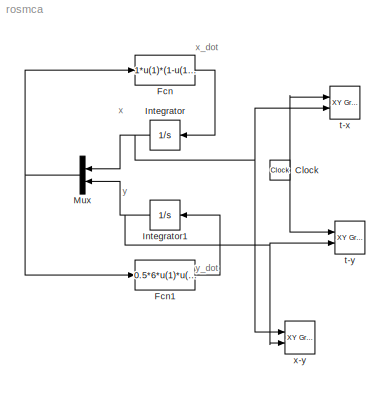
MODEL rosmca
KIND model
BLOCK [Clock] Clock
  SID = 1
BLOCK [Fcn] Fcn
  Expr = 1*u(1)*(1-u(1)/10)-6*u(1)*u(2)/(2+u(1))
  SID = 2
BLOCK [Fcn] Fcn1
  Expr = 0.5*6*u(1)*u(2)/(2+u(1))-2.5*u(2)
  SID = 3
BLOCK [Integrator] Integrator
  InitialCondition = 4
  Ports = [1, 1]
  SID = 4
BLOCK [Integrator] Integrator1
  InitialCondition = 2
  Ports = [1, 1]
  SID = 5
BLOCK [Mux] Mux
  DisplayOption = bar
  Inputs = 2
  Ports = [2, 1]
  SID = 6
BLOCK [Reference] t-x  REF=simulink/Sinks/XY Graph
  Ports = [2]
  SID = 7
  SourceBlock = simulink/Sinks/XY Graph
  SourceProductBaseCode = SL
  SourceProductName = Simulink
  SourceType = XY scope.
  st = 0.01
  xmax = 100
  xmin = 0
  ymax = 12
  ymin = 0
BLOCK [Reference] t-y  REF=simulink/Sinks/XY Graph
  Ports = [2]
  SID = 8
  SourceBlock = simulink/Sinks/XY Graph
  SourceProductBaseCode = SL
  SourceProductName = Simulink
  SourceType = XY scope.
  st = 0.01
  xmax = 100
  xmin = 0
  ymax = 4
  ymin = 0
BLOCK [Reference] x-y  REF=simulink/Sinks/XY Graph
  Ports = [2]
  SID = 9
  SourceBlock = simulink/Sinks/XY Graph
  SourceProductBaseCode = SL
  SourceProductName = Simulink
  SourceType = XY scope.
  st = 0.01
  xmax = 12
  xmin = 0
  ymax = 4
  ymin = 0
ANNOTATION (root): x
ANNOTATION (root): x_dot
ANNOTATION (root): y
ANNOTATION (root): y_dot
NET Clock:1 -> t-x:1, t-y:1
LINE Fcn1:1 -> Integrator1:1
LINE Fcn:1 -> Integrator:1
NET Integrator1:1 -> Mux:2, t-y:2, x-y:2
NET Integrator:1 -> Mux:1, t-x:2, x-y:1
NET Mux:1 -> Fcn1:1, Fcn:1
note: NET lines group one-source signal fan-out (src -> all destinations, sorted); 1:1 wires keep LINE
